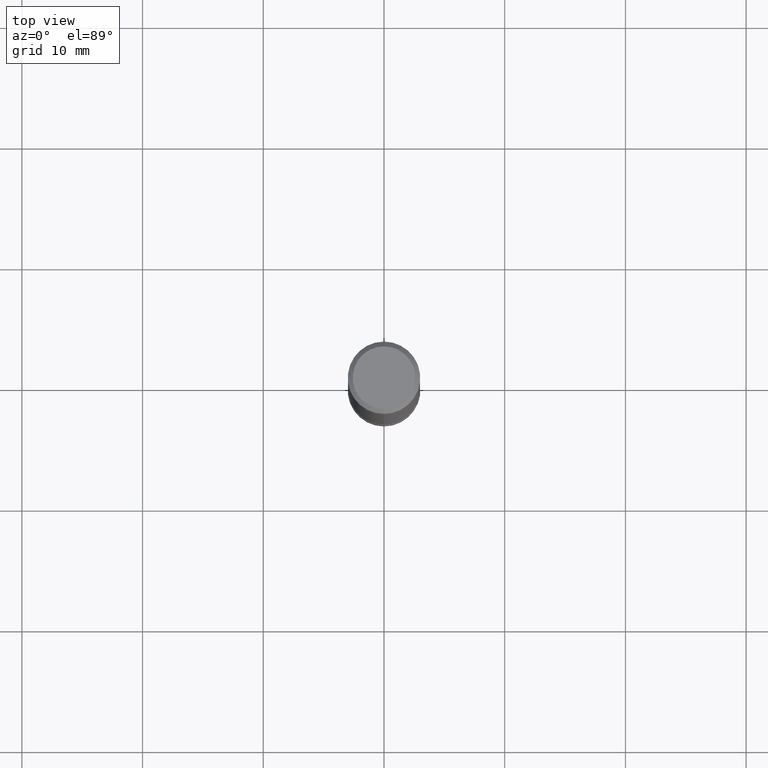
[diagram: clean part render]
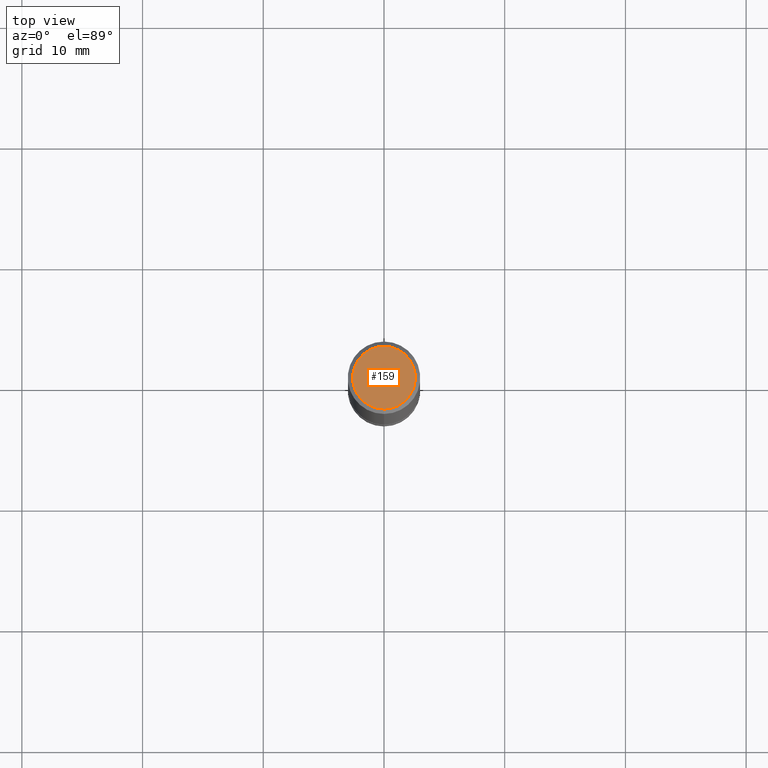
[diagram: same view with one face highlighted and labeled with its STEP entity id]
A machine part, top view. The second image highlights one B-rep face of the part: STEP entity #159.
In plain terms, the highlighted planar face has unit normal (-0, 0, 1).
Its self-contained STEP definition (entity closure, byte-faithful):
#133=VERTEX_POINT('',#321);
#159=ADVANCED_FACE('',(#347),#348,.T.);
#219=VERTEX_POINT('',#418);
#235=EDGE_CURVE('',#219,#133,#435,.T.);
#283=EDGE_CURVE('',#133,#219,#494,.T.);
#321=CARTESIAN_POINT('',(0.0,2.6,0.0));
#347=FACE_OUTER_BOUND('',#560,.T.);
#348=PLANE('',#561);
#418=CARTESIAN_POINT('',(3.18397651993818E-016,-2.6,0.0));
#435=CIRCLE('',#673,2.6);
#494=CIRCLE('',#745,2.6);
#560=EDGE_LOOP('',(#785,#786));
#561=AXIS2_PLACEMENT_3D('',#787,#788,#789);
#673=AXIS2_PLACEMENT_3D('',#907,#908,#909);
#745=AXIS2_PLACEMENT_3D('',#992,#993,#994);
#785=ORIENTED_EDGE('',*,*,#283,.F.);
#786=ORIENTED_EDGE('',*,*,#235,.F.);
#787=CARTESIAN_POINT('',(0.0,1.3,0.0));
#788=DIRECTION('',(-0.0,0.0,1.0));
#789=DIRECTION('',(0.0,-1.0,0.0));
#907=CARTESIAN_POINT('',(0.0,0.0,0.0));
#908=DIRECTION('',(0.0,0.0,-1.0));
#909=DIRECTION('',(0.0,1.0,0.0));
#992=CARTESIAN_POINT('',(0.0,0.0,0.0));
#993=DIRECTION('',(0.0,0.0,-1.0));
#994=DIRECTION('',(0.0,1.0,0.0));